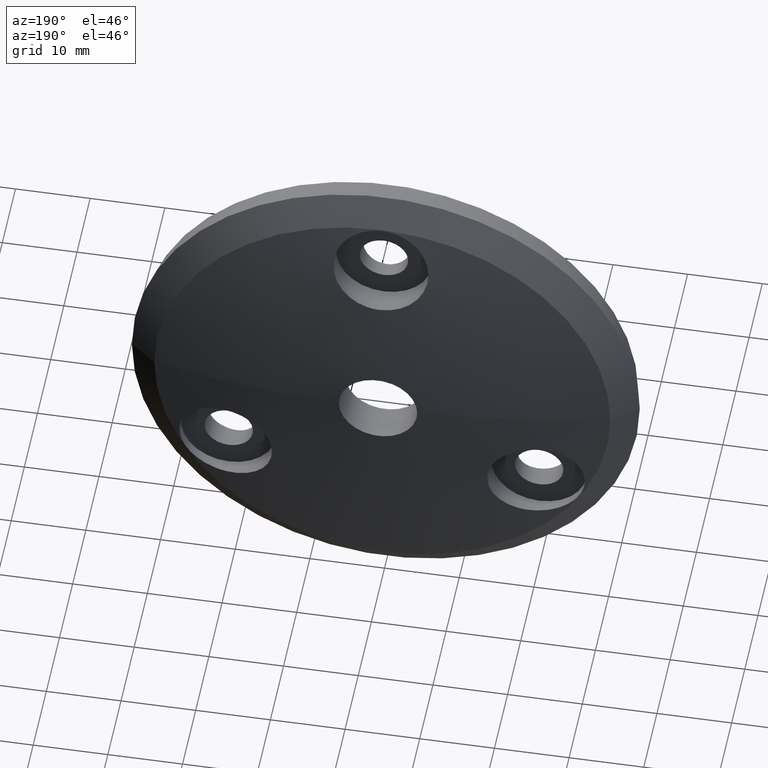
[diagram: clean part render]
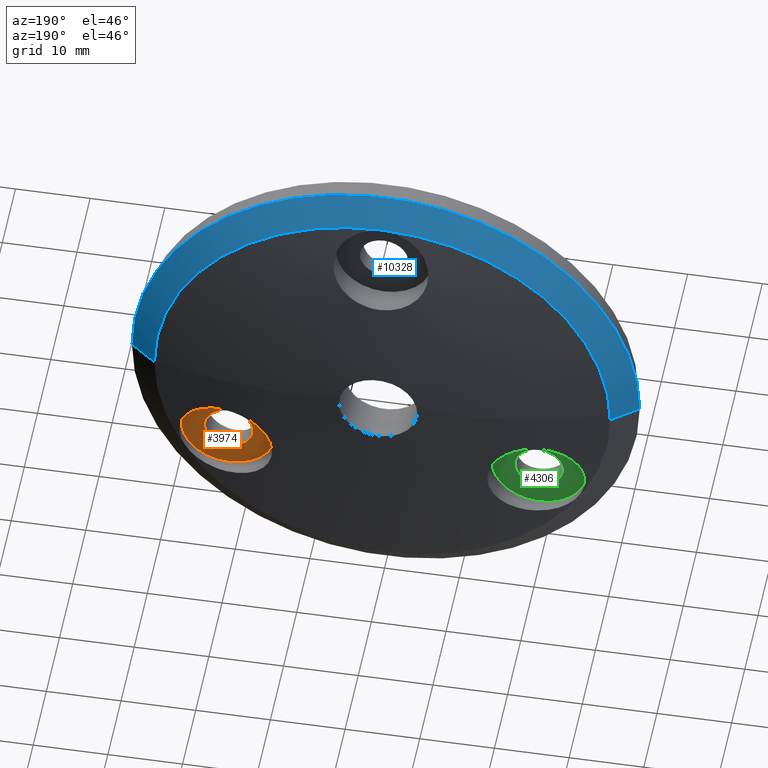
[diagram: same view with three faces highlighted in distinct colors, each labeled with its STEP entity id]
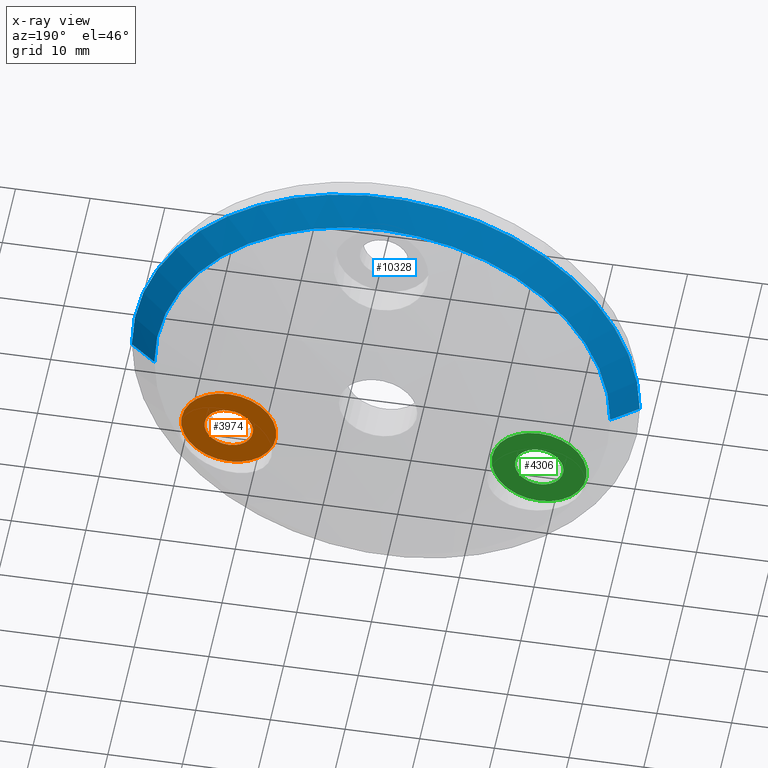
[diagram: x-ray of the same camera — body ghosted, the three highlighted faces saturated]
A machine part, auxiliary view with three faces highlighted in distinct colors.
The next image is the same camera in x-ray (body ghosted, the three faces saturated) — at least one of them is partly hidden behind the body in this view.
Their STEP definitions:

[orange] entity #3974 — the highlighted planar face has unit normal (0, -1, 0).
#57 = PLANE ( 'NONE',  #6331 ) ;
#504 = AXIS2_PLACEMENT_3D ( 'NONE', #6456, #7316, #5482 ) ;
#534 = ORIENTED_EDGE ( 'NONE', *, *, #12710, .T. ) ;
#733 = AXIS2_PLACEMENT_3D ( 'NONE', #4969, #12110, #9969 ) ;
#791 = ORIENTED_EDGE ( 'NONE', *, *, #5883, .F. ) ;
#903 = EDGE_CURVE ( 'NONE', #11155, #11668, #4081, .T. ) ;
#1049 = DIRECTION ( 'NONE',  ( 0.000000000000000000, -1.000000000000000000, 4.792891466384507883E-15 ) ) ;
#1144 = DIRECTION ( 'NONE',  ( 0.000000000000000000, -4.792891466384507883E-15, -1.000000000000000000 ) ) ;
#1158 = CARTESIAN_POINT ( 'NONE',  ( 20.78460969082647480, 0.4405351615402708920, -5.625000000000095035 ) ) ;
#1721 = CIRCLE ( 'NONE', #504, 3.249999999999999556 ) ;
#2074 = DIRECTION ( 'NONE',  ( -0.000000000000000000, 1.000000000000000000, -4.792891466384507883E-15 ) ) ;
#2136 = DIRECTION ( 'NONE',  ( 0.000000000000000000, 4.796000198288820078E-15, 1.000000000000000000 ) ) ;
#2260 = CIRCLE ( 'NONE', #2342, 6.374999999999999112 ) ;
#2342 = AXIS2_PLACEMENT_3D ( 'NONE', #4975, #4022, #2136 ) ;
#2364 = VERTEX_POINT ( 'NONE', #11755 ) ;
#2429 = ORIENTED_EDGE ( 'NONE', *, *, #9242, .F. ) ;
#3501 = FACE_BOUND ( 'NONE', #7058, .T. ) ;
#3974 = ADVANCED_FACE ( 'NONE', ( #3501, #10791 ), #57, .F. ) ;
#4022 = DIRECTION ( 'NONE',  ( -0.000000000000000000, 1.000000000000000000, -4.792891466384507883E-15 ) ) ;
#4081 = CIRCLE ( 'NONE', #733, 6.374999999999999112 ) ;
#4969 = CARTESIAN_POINT ( 'NONE',  ( 20.78460969082647480, 0.4405351615402403054, -12.00000000000009415 ) ) ;
#4975 = CARTESIAN_POINT ( 'NONE',  ( 20.78460969082647480, 0.4405351615402403054, -12.00000000000009415 ) ) ;
#5482 = DIRECTION ( 'NONE',  ( 0.000000000000000000, 4.787169592359074456E-15, 1.000000000000000000 ) ) ;
#5883 = EDGE_CURVE ( 'NONE', #8029, #2364, #11555, .T. ) ;
#6331 = AXIS2_PLACEMENT_3D ( 'NONE', #8899, #1049, #1144 ) ;
#6456 = CARTESIAN_POINT ( 'NONE',  ( 20.78460969082647480, 0.4405351615402400833, -12.00000000000009415 ) ) ;
#7058 = EDGE_LOOP ( 'NONE', ( #791, #2429 ) ) ;
#7316 = DIRECTION ( 'NONE',  ( -0.000000000000000000, 1.000000000000000000, -4.792891466384507883E-15 ) ) ;
#7993 = AXIS2_PLACEMENT_3D ( 'NONE', #12798, #2074, #8901 ) ;
#8029 = VERTEX_POINT ( 'NONE', #10465 ) ;
#8339 = ORIENTED_EDGE ( 'NONE', *, *, #903, .T. ) ;
#8899 = CARTESIAN_POINT ( 'NONE',  ( 24.03460969082647480, 0.4405351615402401944, -12.00000000000009415 ) ) ;
#8901 = DIRECTION ( 'NONE',  ( 0.000000000000000000, 4.787169592359074456E-15, 1.000000000000000000 ) ) ;
#9242 = EDGE_CURVE ( 'NONE', #2364, #8029, #1721, .T. ) ;
#9969 = DIRECTION ( 'NONE',  ( 0.000000000000000000, 4.796000198288820078E-15, 1.000000000000000000 ) ) ;
#9982 = CARTESIAN_POINT ( 'NONE',  ( 20.78460969082647480, 0.4405351615402097187, -18.37500000000009237 ) ) ;
#10465 = CARTESIAN_POINT ( 'NONE',  ( 20.78460969082647480, 0.4405351615402556820, -8.750000000000094147 ) ) ;
#10791 = FACE_OUTER_BOUND ( 'NONE', #12355, .T. ) ;
#11155 = VERTEX_POINT ( 'NONE', #9982 ) ;
#11555 = CIRCLE ( 'NONE', #7993, 3.249999999999999556 ) ;
#11668 = VERTEX_POINT ( 'NONE', #1158 ) ;
#11755 = CARTESIAN_POINT ( 'NONE',  ( 20.78460969082647480, 0.4405351615402245402, -15.25000000000009415 ) ) ;
#12110 = DIRECTION ( 'NONE',  ( -0.000000000000000000, 1.000000000000000000, -4.792891466384507883E-15 ) ) ;
#12355 = EDGE_LOOP ( 'NONE', ( #534, #8339 ) ) ;
#12710 = EDGE_CURVE ( 'NONE', #11668, #11155, #2260, .T. ) ;
#12798 = CARTESIAN_POINT ( 'NONE',  ( 20.78460969082647480, 0.4405351615402400833, -12.00000000000009415 ) ) ;

[blue] entity #10328 — the highlighted conical surface has half-angle 52.515 deg.
#83 = ORIENTED_EDGE ( 'NONE', *, *, #4610, .F. ) ;
#301 = CARTESIAN_POINT ( 'NONE',  ( 34.00000000000002842, -0.9853033424980119914, 4.163799117101003715E-15 ) ) ;
#502 = DIRECTION ( 'NONE',  ( 1.912064095349771562E-17, 1.000000000000000000, -0.000000000000000000 ) ) ;
#1068 = CARTESIAN_POINT ( 'NONE',  ( -34.00000000000002842, -0.9853033424980112143, 0.000000000000000000 ) ) ;
#1180 = VERTEX_POINT ( 'NONE', #301 ) ;
#1464 = CARTESIAN_POINT ( 'NONE',  ( 34.00000000000002842, -0.9853033424980122135, 0.000000000000000000 ) ) ;
#2348 = FACE_OUTER_BOUND ( 'NONE', #12876, .T. ) ;
#2911 = DIRECTION ( 'NONE',  ( 1.000000000000000000, -1.913297951445006266E-17, 0.000000000000000000 ) ) ;
#3299 = AXIS2_PLACEMENT_3D ( 'NONE', #5454, #502, #6378 ) ;
#3654 = VECTOR ( 'NONE', #8602, 1000.000000000000000 ) ;
#4249 = LINE ( 'NONE', #1464, #3654 ) ;
#4508 = VECTOR ( 'NONE', #12866, 1000.000000000000000 ) ;
#4534 = DIRECTION ( 'NONE',  ( -1.000000000000000000, 2.131185924742342936E-17, 0.000000000000000000 ) ) ;
#4610 = EDGE_CURVE ( 'NONE', #9473, #1180, #4249, .T. ) ;
#4837 = ORIENTED_EDGE ( 'NONE', *, *, #8958, .T. ) ;
#5051 = EDGE_CURVE ( 'NONE', #7531, #9473, #6584, .T. ) ;
#5454 = CARTESIAN_POINT ( 'NONE',  ( -1.883963144218567108E-17, -0.9853033424980115473, 0.000000000000000000 ) ) ;
#6373 = CARTESIAN_POINT ( 'NONE',  ( 3.213290943353922085E-17, 1.680535161540240408, 0.000000000000000000 ) ) ;
#6378 = DIRECTION ( 'NONE',  ( -1.000000000000000000, 1.913297951445006266E-17, 0.000000000000000000 ) ) ;
#6584 = CIRCLE ( 'NONE', #12422, 30.52391140251874901 ) ;
#7531 = VERTEX_POINT ( 'NONE', #10984 ) ;
#7559 = VERTEX_POINT ( 'NONE', #1068 ) ;
#7997 = DIRECTION ( 'NONE',  ( -1.912064095349771562E-17, -1.000000000000000000, 0.000000000000000000 ) ) ;
#8000 = CARTESIAN_POINT ( 'NONE',  ( -34.00000000000002842, -0.9853033424980109922, 4.163799117101004504E-15 ) ) ;
#8031 = EDGE_CURVE ( 'NONE', #7559, #1180, #11541, .T. ) ;
#8095 = ORIENTED_EDGE ( 'NONE', *, *, #8031, .T. ) ;
#8602 = DIRECTION ( 'NONE',  ( 0.7935140666097495465, -0.6085519091190643159, 0.000000000000000000 ) ) ;
#8673 = CONICAL_SURFACE ( 'NONE', #11345, 34.00000000000002842, 0.9165619245877464349 ) ;
#8847 = CARTESIAN_POINT ( 'NONE',  ( -1.883963144218567108E-17, -0.9853033424980115473, 0.000000000000000000 ) ) ;
#8958 = EDGE_CURVE ( 'NONE', #7531, #7559, #10739, .T. ) ;
#9473 = VERTEX_POINT ( 'NONE', #11706 ) ;
#10328 = ADVANCED_FACE ( 'NONE', ( #2348 ), #8673, .T. ) ;
#10509 = DIRECTION ( 'NONE',  ( 1.912064095349771562E-17, 1.000000000000000000, -0.000000000000000000 ) ) ;
#10739 = LINE ( 'NONE', #8000, #4508 ) ;
#10984 = CARTESIAN_POINT ( 'NONE',  ( -30.52391140251874901, 1.680535161540238631, -3.738101039655201076E-15 ) ) ;
#11345 = AXIS2_PLACEMENT_3D ( 'NONE', #8847, #7997, #2911 ) ;
#11541 = CIRCLE ( 'NONE', #3299, 34.00000000000002842 ) ;
#11706 = CARTESIAN_POINT ( 'NONE',  ( 30.52391140251877033, 1.680535161540238187, 0.000000000000000000 ) ) ;
#12422 = AXIS2_PLACEMENT_3D ( 'NONE', #6373, #10509, #4534 ) ;
#12816 = ORIENTED_EDGE ( 'NONE', *, *, #5051, .F. ) ;
#12866 = DIRECTION ( 'NONE',  ( -0.7935140666097495465, -0.6085519091190643159, 9.717744617520294502E-17 ) ) ;
#12876 = EDGE_LOOP ( 'NONE', ( #12816, #4837, #8095, #83 ) ) ;

[green] entity #4306 — the highlighted planar face has unit normal (0, -1, -0).
#253 = EDGE_CURVE ( 'NONE', #3524, #6903, #3796, .T. ) ;
#362 = ORIENTED_EDGE ( 'NONE', *, *, #253, .T. ) ;
#496 = CARTESIAN_POINT ( 'NONE',  ( -20.78460969082663823, 0.4405351615402717802, -18.37499999999981526 ) ) ;
#561 = AXIS2_PLACEMENT_3D ( 'NONE', #8587, #4566, #610 ) ;
#583 = DIRECTION ( 'NONE',  ( -0.000000000000000000, 1.000000000000000000, 4.792891466384545749E-15 ) ) ;
#610 = DIRECTION ( 'NONE',  ( 0.000000000000000000, -4.796000198288819289E-15, 1.000000000000000000 ) ) ;
#922 = DIRECTION ( 'NONE',  ( 0.000000000000000000, -4.787169592359074456E-15, 1.000000000000000000 ) ) ;
#1153 = DIRECTION ( 'NONE',  ( -0.000000000000000000, 1.000000000000000000, 4.792891466384545749E-15 ) ) ;
#1174 = DIRECTION ( 'NONE',  ( 0.000000000000000000, 4.792891466384545749E-15, -1.000000000000000000 ) ) ;
#2142 = EDGE_LOOP ( 'NONE', ( #5905, #9310 ) ) ;
#2503 = VERTEX_POINT ( 'NONE', #3911 ) ;
#2864 = CARTESIAN_POINT ( 'NONE',  ( -20.78460969082663823, 0.4405351615402409715, -11.99999999999981348 ) ) ;
#2992 = CIRCLE ( 'NONE', #12352, 3.249999999999999556 ) ;
#3524 = VERTEX_POINT ( 'NONE', #10563 ) ;
#3796 = CIRCLE ( 'NONE', #561, 6.375000000000000888 ) ;
#3911 = CARTESIAN_POINT ( 'NONE',  ( -20.78460969082663823, 0.4405351615402565146, -15.24999999999981171 ) ) ;
#4079 = FACE_OUTER_BOUND ( 'NONE', #6580, .T. ) ;
#4107 = CARTESIAN_POINT ( 'NONE',  ( -20.78460969082663823, 0.4405351615402411936, -11.99999999999981348 ) ) ;
#4250 = AXIS2_PLACEMENT_3D ( 'NONE', #6080, #11987, #1174 ) ;
#4281 = DIRECTION ( 'NONE',  ( 0.000000000000000000, -4.796000198288819289E-15, 1.000000000000000000 ) ) ;
#4306 = ADVANCED_FACE ( 'NONE', ( #9688, #4079 ), #11034, .F. ) ;
#4566 = DIRECTION ( 'NONE',  ( -0.000000000000000000, 1.000000000000000000, 4.792891466384545749E-15 ) ) ;
#4852 = CARTESIAN_POINT ( 'NONE',  ( -20.78460969082663823, 0.4405351615402254284, -8.749999999999813483 ) ) ;
#5905 = ORIENTED_EDGE ( 'NONE', *, *, #6788, .F. ) ;
#6080 = CARTESIAN_POINT ( 'NONE',  ( -17.53460969082663823, 0.4405351615402410825, -11.99999999999981348 ) ) ;
#6293 = EDGE_CURVE ( 'NONE', #2503, #9803, #9675, .T. ) ;
#6580 = EDGE_LOOP ( 'NONE', ( #362, #12007 ) ) ;
#6788 = EDGE_CURVE ( 'NONE', #9803, #2503, #2992, .T. ) ;
#6903 = VERTEX_POINT ( 'NONE', #496 ) ;
#8587 = CARTESIAN_POINT ( 'NONE',  ( -20.78460969082663823, 0.4405351615402411936, -11.99999999999981348 ) ) ;
#8935 = DIRECTION ( 'NONE',  ( -0.000000000000000000, 1.000000000000000000, 4.792891466384545749E-15 ) ) ;
#9310 = ORIENTED_EDGE ( 'NONE', *, *, #6293, .F. ) ;
#9394 = AXIS2_PLACEMENT_3D ( 'NONE', #4107, #1153, #4281 ) ;
#9469 = CARTESIAN_POINT ( 'NONE',  ( -20.78460969082663823, 0.4405351615402409715, -11.99999999999981348 ) ) ;
#9675 = CIRCLE ( 'NONE', #12756, 3.249999999999999556 ) ;
#9688 = FACE_BOUND ( 'NONE', #2142, .T. ) ;
#9803 = VERTEX_POINT ( 'NONE', #4852 ) ;
#9927 = EDGE_CURVE ( 'NONE', #6903, #3524, #12878, .T. ) ;
#10563 = CARTESIAN_POINT ( 'NONE',  ( -20.78460969082663823, 0.4405351615402106069, -5.624999999999812594 ) ) ;
#11034 = PLANE ( 'NONE',  #4250 ) ;
#11502 = DIRECTION ( 'NONE',  ( 0.000000000000000000, -4.787169592359074456E-15, 1.000000000000000000 ) ) ;
#11987 = DIRECTION ( 'NONE',  ( 0.000000000000000000, -1.000000000000000000, -4.792891466384545749E-15 ) ) ;
#12007 = ORIENTED_EDGE ( 'NONE', *, *, #9927, .T. ) ;
#12352 = AXIS2_PLACEMENT_3D ( 'NONE', #9469, #583, #11502 ) ;
#12756 = AXIS2_PLACEMENT_3D ( 'NONE', #2864, #8935, #922 ) ;
#12878 = CIRCLE ( 'NONE', #9394, 6.375000000000000888 ) ;